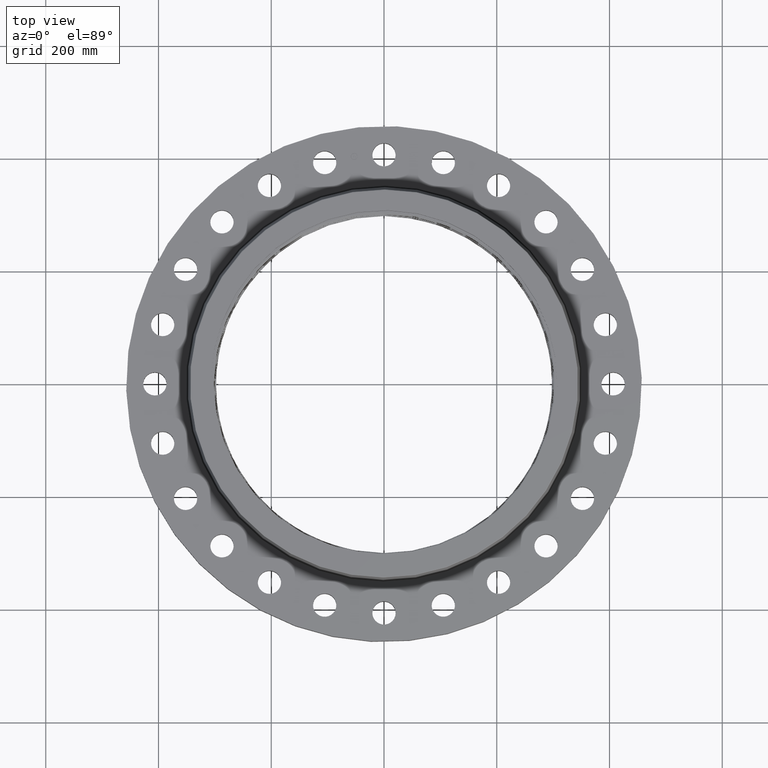
[diagram: clean part render]
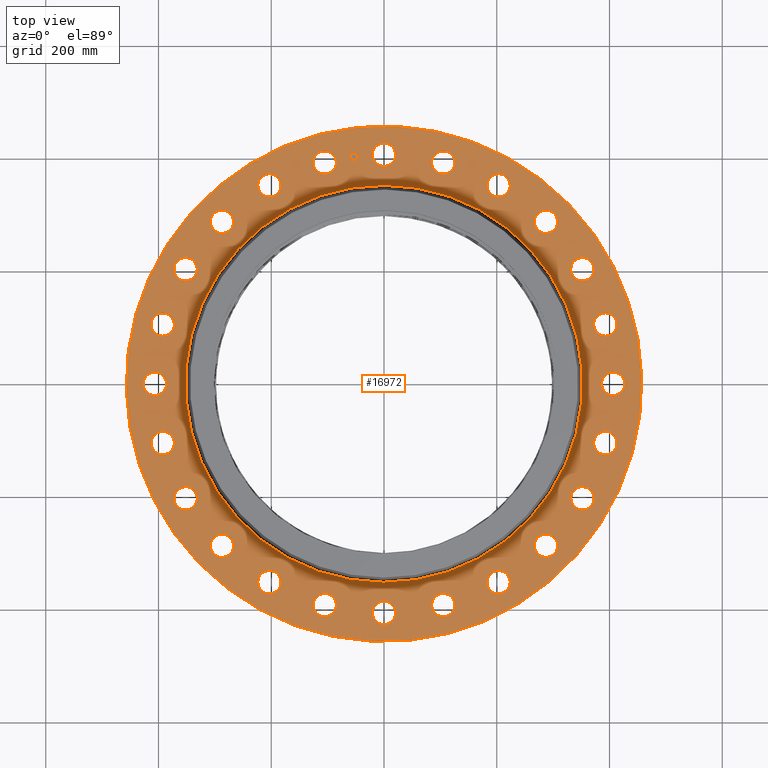
[diagram: same view with one face highlighted and labeled with its STEP entity id]
A machine part, top view. The second image highlights one B-rep face of the part: STEP entity #16972.
In plain terms, the highlighted planar face has unit normal (0, 0, -1).
Its self-contained STEP definition (entity closure, byte-faithful):
#462=AXIS2_PLACEMENT_3D('Circle Axis2P3D',#460,#461,$) ;
#479=AXIS2_PLACEMENT_3D('Circle Axis2P3D',#477,#478,$) ;
#519=AXIS2_PLACEMENT_3D('Circle Axis2P3D',#517,#518,$) ;
#536=AXIS2_PLACEMENT_3D('Circle Axis2P3D',#534,#535,$) ;
#576=AXIS2_PLACEMENT_3D('Circle Axis2P3D',#574,#575,$) ;
#593=AXIS2_PLACEMENT_3D('Circle Axis2P3D',#591,#592,$) ;
#633=AXIS2_PLACEMENT_3D('Circle Axis2P3D',#631,#632,$) ;
#650=AXIS2_PLACEMENT_3D('Circle Axis2P3D',#648,#649,$) ;
#690=AXIS2_PLACEMENT_3D('Circle Axis2P3D',#688,#689,$) ;
#707=AXIS2_PLACEMENT_3D('Circle Axis2P3D',#705,#706,$) ;
#747=AXIS2_PLACEMENT_3D('Circle Axis2P3D',#745,#746,$) ;
#764=AXIS2_PLACEMENT_3D('Circle Axis2P3D',#762,#763,$) ;
#804=AXIS2_PLACEMENT_3D('Circle Axis2P3D',#802,#803,$) ;
#821=AXIS2_PLACEMENT_3D('Circle Axis2P3D',#819,#820,$) ;
#861=AXIS2_PLACEMENT_3D('Circle Axis2P3D',#859,#860,$) ;
#878=AXIS2_PLACEMENT_3D('Circle Axis2P3D',#876,#877,$) ;
#918=AXIS2_PLACEMENT_3D('Circle Axis2P3D',#916,#917,$) ;
#935=AXIS2_PLACEMENT_3D('Circle Axis2P3D',#933,#934,$) ;
#975=AXIS2_PLACEMENT_3D('Circle Axis2P3D',#973,#974,$) ;
#992=AXIS2_PLACEMENT_3D('Circle Axis2P3D',#990,#991,$) ;
#1032=AXIS2_PLACEMENT_3D('Circle Axis2P3D',#1030,#1031,$) ;
#1049=AXIS2_PLACEMENT_3D('Circle Axis2P3D',#1047,#1048,$) ;
#1089=AXIS2_PLACEMENT_3D('Circle Axis2P3D',#1087,#1088,$) ;
#1106=AXIS2_PLACEMENT_3D('Circle Axis2P3D',#1104,#1105,$) ;
#1146=AXIS2_PLACEMENT_3D('Circle Axis2P3D',#1144,#1145,$) ;
#1163=AXIS2_PLACEMENT_3D('Circle Axis2P3D',#1161,#1162,$) ;
#1203=AXIS2_PLACEMENT_3D('Circle Axis2P3D',#1201,#1202,$) ;
#1220=AXIS2_PLACEMENT_3D('Circle Axis2P3D',#1218,#1219,$) ;
#1260=AXIS2_PLACEMENT_3D('Circle Axis2P3D',#1258,#1259,$) ;
#1277=AXIS2_PLACEMENT_3D('Circle Axis2P3D',#1275,#1276,$) ;
#1317=AXIS2_PLACEMENT_3D('Circle Axis2P3D',#1315,#1316,$) ;
#1334=AXIS2_PLACEMENT_3D('Circle Axis2P3D',#1332,#1333,$) ;
#1374=AXIS2_PLACEMENT_3D('Circle Axis2P3D',#1372,#1373,$) ;
#1391=AXIS2_PLACEMENT_3D('Circle Axis2P3D',#1389,#1390,$) ;
#1431=AXIS2_PLACEMENT_3D('Circle Axis2P3D',#1429,#1430,$) ;
#1448=AXIS2_PLACEMENT_3D('Circle Axis2P3D',#1446,#1447,$) ;
#1488=AXIS2_PLACEMENT_3D('Circle Axis2P3D',#1486,#1487,$) ;
#1505=AXIS2_PLACEMENT_3D('Circle Axis2P3D',#1503,#1504,$) ;
#1545=AXIS2_PLACEMENT_3D('Circle Axis2P3D',#1543,#1544,$) ;
#1562=AXIS2_PLACEMENT_3D('Circle Axis2P3D',#1560,#1561,$) ;
#1602=AXIS2_PLACEMENT_3D('Circle Axis2P3D',#1600,#1601,$) ;
#1619=AXIS2_PLACEMENT_3D('Circle Axis2P3D',#1617,#1618,$) ;
#1659=AXIS2_PLACEMENT_3D('Circle Axis2P3D',#1657,#1658,$) ;
#1676=AXIS2_PLACEMENT_3D('Circle Axis2P3D',#1674,#1675,$) ;
#1716=AXIS2_PLACEMENT_3D('Circle Axis2P3D',#1714,#1715,$) ;
#1733=AXIS2_PLACEMENT_3D('Circle Axis2P3D',#1731,#1732,$) ;
#2031=AXIS2_PLACEMENT_3D('Circle Axis2P3D',#2029,#2030,$) ;
#2057=AXIS2_PLACEMENT_3D('Circle Axis2P3D',#2055,#2056,$) ;
#2081=AXIS2_PLACEMENT_3D('Circle Axis2P3D',#2079,#2080,$) ;
#2100=AXIS2_PLACEMENT_3D('Circle Axis2P3D',#2098,#2099,$) ;
#2131=AXIS2_PLACEMENT_3D('Circle Axis2P3D',#2129,#2130,$) ;
#2143=AXIS2_PLACEMENT_3D('Circle Axis2P3D',#2141,#2142,$) ;
#16848=AXIS2_PLACEMENT_3D('Plane Axis2P3D',#16845,#16846,#16847) ;
#16956=AXIS2_PLACEMENT_3D('Circle Axis2P3D',#16954,#16955,$) ;
#16965=AXIS2_PLACEMENT_3D('Circle Axis2P3D',#16963,#16964,$) ;
#443=CARTESIAN_POINT('Vertex',(4.73083481058,14.8922801797,2.69000000001)) ;
#457=CARTESIAN_POINT('Vertex',(3.55137463273,16.0173462617,2.69000000001)) ;
#460=CARTESIAN_POINT('Axis2P3D Location',(4.14110472166,15.4548132207,2.69000000001)) ;
#477=CARTESIAN_POINT('Axis2P3D Location',(4.14110472166,15.4548132207,2.69000000001)) ;
#500=CARTESIAN_POINT('Vertex',(-0.715229787944,-15.6092681861,2.69000000001)) ;
#514=CARTESIAN_POINT('Vertex',(0.715229787944,-16.390731814,2.69000000001)) ;
#517=CARTESIAN_POINT('Axis2P3D Location',(1.95943487864E-015,-16.0000000001,2.69000000001)) ;
#534=CARTESIAN_POINT('Axis2P3D Location',(1.95943487864E-015,-16.0000000001,2.69000000001)) ;
#557=CARTESIAN_POINT('Vertex',(-3.34911696277,15.2625103612,2.69000000001)) ;
#571=CARTESIAN_POINT('Vertex',(-4.93309248054,15.6471160802,2.69000000001)) ;
#574=CARTESIAN_POINT('Axis2P3D Location',(-4.14110472166,15.4548132207,2.69000000001)) ;
#591=CARTESIAN_POINT('Axis2P3D Location',(-4.14110472166,15.4548132207,2.69000000001)) ;
#614=CARTESIAN_POINT('Vertex',(3.34911696277,-15.2625103612,2.69000000001)) ;
#628=CARTESIAN_POINT('Vertex',(4.93309248054,-15.6471160802,2.69000000001)) ;
#631=CARTESIAN_POINT('Axis2P3D Location',(4.14110472166,-15.4548132207,2.69000000001)) ;
#648=CARTESIAN_POINT('Axis2P3D Location',(4.14110472166,-15.4548132207,2.69000000001)) ;
#671=CARTESIAN_POINT('Vertex',(-7.18522692715,13.8756376776,2.69000000001)) ;
#685=CARTESIAN_POINT('Vertex',(-8.81477307292,13.8371752436,2.69000000001)) ;
#688=CARTESIAN_POINT('Axis2P3D Location',(-8.00000000003,13.8564064606,2.69000000001)) ;
#705=CARTESIAN_POINT('Axis2P3D Location',(-8.00000000003,13.8564064606,2.69000000001)) ;
#728=CARTESIAN_POINT('Vertex',(7.18522692715,-13.8756376776,2.69000000001)) ;
#742=CARTESIAN_POINT('Vertex',(8.81477307292,-13.8371752436,2.69000000001)) ;
#745=CARTESIAN_POINT('Axis2P3D Location',(8.00000000003,-13.8564064606,2.69000000001)) ;
#762=CARTESIAN_POINT('Axis2P3D Location',(8.00000000003,-13.8564064606,2.69000000001)) ;
#785=CARTESIAN_POINT('Vertex',(-10.5316755506,11.5431632169,2.69000000001)) ;
#799=CARTESIAN_POINT('Vertex',(-12.0957414475,11.0842537811,2.69000000001)) ;
#802=CARTESIAN_POINT('Axis2P3D Location',(-11.313708499,11.313708499,2.69000000001)) ;
#819=CARTESIAN_POINT('Axis2P3D Location',(-11.313708499,11.313708499,2.69000000001)) ;
#842=CARTESIAN_POINT('Vertex',(10.5316755506,-11.5431632169,2.69000000001)) ;
#856=CARTESIAN_POINT('Vertex',(12.0957414475,-11.0842537811,2.69000000001)) ;
#859=CARTESIAN_POINT('Axis2P3D Location',(11.313708499,-11.313708499,2.69000000001)) ;
#876=CARTESIAN_POINT('Axis2P3D Location',(11.313708499,-11.313708499,2.69000000001)) ;
#899=CARTESIAN_POINT('Vertex',(-13.1604078897,8.42404125895,2.69000000001)) ;
#913=CARTESIAN_POINT('Vertex',(-14.5524050315,7.57595874111,2.69000000001)) ;
#916=CARTESIAN_POINT('Axis2P3D Location',(-13.8564064606,8.00000000003,2.69000000001)) ;
#933=CARTESIAN_POINT('Axis2P3D Location',(-13.8564064606,8.00000000003,2.69000000001)) ;
#956=CARTESIAN_POINT('Vertex',(13.1604078897,-8.42404125895,2.69000000001)) ;
#970=CARTESIAN_POINT('Vertex',(14.5524050315,-7.57595874111,2.69000000001)) ;
#973=CARTESIAN_POINT('Axis2P3D Location',(13.8564064606,-8.00000000003,2.69000000001)) ;
#990=CARTESIAN_POINT('Axis2P3D Location',(13.8564064606,-8.00000000003,2.69000000001)) ;
#1013=CARTESIAN_POINT('Vertex',(-14.8922801797,4.73083481058,2.69000000001)) ;
#1027=CARTESIAN_POINT('Vertex',(-16.0173462617,3.55137463273,2.69000000001)) ;
#1030=CARTESIAN_POINT('Axis2P3D Location',(-15.4548132207,4.14110472166,2.69000000001)) ;
#1047=CARTESIAN_POINT('Axis2P3D Location',(-15.4548132207,4.14110472166,2.69000000001)) ;
#1070=CARTESIAN_POINT('Vertex',(14.8922801797,-4.73083481058,2.69000000001)) ;
#1084=CARTESIAN_POINT('Vertex',(16.0173462617,-3.55137463273,2.69000000001)) ;
#1087=CARTESIAN_POINT('Axis2P3D Location',(15.4548132207,-4.14110472166,2.69000000001)) ;
#1104=CARTESIAN_POINT('Axis2P3D Location',(15.4548132207,-4.14110472166,2.69000000001)) ;
#1127=CARTESIAN_POINT('Vertex',(-15.6092681861,0.715229787944,2.69000000001)) ;
#1141=CARTESIAN_POINT('Vertex',(-16.390731814,-0.715229787944,2.69000000001)) ;
#1144=CARTESIAN_POINT('Axis2P3D Location',(-16.0000000001,-7.01222441556E-016,2.69000000001)) ;
#1161=CARTESIAN_POINT('Axis2P3D Location',(-16.0000000001,-7.01222441556E-016,2.69000000001)) ;
#1184=CARTESIAN_POINT('Vertex',(15.6092681861,-0.715229787944,2.69000000001)) ;
#1198=CARTESIAN_POINT('Vertex',(16.390731814,0.715229787944,2.69000000001)) ;
#1201=CARTESIAN_POINT('Axis2P3D Location',(16.0000000001,9.79717439322E-016,2.69000000001)) ;
#1218=CARTESIAN_POINT('Axis2P3D Location',(16.0000000001,9.79717439322E-016,2.69000000001)) ;
#1241=CARTESIAN_POINT('Vertex',(-15.2625103612,-3.34911696277,2.69000000001)) ;
#1255=CARTESIAN_POINT('Vertex',(-15.6471160802,-4.93309248054,2.69000000001)) ;
#1258=CARTESIAN_POINT('Axis2P3D Location',(-15.4548132207,-4.14110472166,2.69000000001)) ;
#1275=CARTESIAN_POINT('Axis2P3D Location',(-15.4548132207,-4.14110472166,2.69000000001)) ;
#1298=CARTESIAN_POINT('Vertex',(15.2625103612,3.34911696277,2.69000000001)) ;
#1312=CARTESIAN_POINT('Vertex',(15.6471160802,4.93309248054,2.69000000001)) ;
#1315=CARTESIAN_POINT('Axis2P3D Location',(15.4548132207,4.14110472166,2.69000000001)) ;
#1332=CARTESIAN_POINT('Axis2P3D Location',(15.4548132207,4.14110472166,2.69000000001)) ;
#1355=CARTESIAN_POINT('Vertex',(-13.8756376776,-7.18522692715,2.69000000001)) ;
#1369=CARTESIAN_POINT('Vertex',(-13.8371752436,-8.81477307292,2.69000000001)) ;
#1372=CARTESIAN_POINT('Axis2P3D Location',(-13.8564064606,-8.00000000003,2.69000000001)) ;
#1389=CARTESIAN_POINT('Axis2P3D Location',(-13.8564064606,-8.00000000003,2.69000000001)) ;
#1412=CARTESIAN_POINT('Vertex',(13.8756376776,7.18522692715,2.69000000001)) ;
#1426=CARTESIAN_POINT('Vertex',(13.8371752436,8.81477307292,2.69000000001)) ;
#1429=CARTESIAN_POINT('Axis2P3D Location',(13.8564064606,8.00000000003,2.69000000001)) ;
#1446=CARTESIAN_POINT('Axis2P3D Location',(13.8564064606,8.00000000003,2.69000000001)) ;
#1469=CARTESIAN_POINT('Vertex',(-11.5431632169,-10.5316755506,2.69000000001)) ;
#1483=CARTESIAN_POINT('Vertex',(-11.0842537811,-12.0957414475,2.69000000001)) ;
#1486=CARTESIAN_POINT('Axis2P3D Location',(-11.313708499,-11.313708499,2.69000000001)) ;
#1503=CARTESIAN_POINT('Axis2P3D Location',(-11.313708499,-11.313708499,2.69000000001)) ;
#1526=CARTESIAN_POINT('Vertex',(11.5431632169,10.5316755506,2.69000000001)) ;
#1540=CARTESIAN_POINT('Vertex',(11.0842537811,12.0957414475,2.69000000001)) ;
#1543=CARTESIAN_POINT('Axis2P3D Location',(11.313708499,11.313708499,2.69000000001)) ;
#1560=CARTESIAN_POINT('Axis2P3D Location',(11.313708499,11.313708499,2.69000000001)) ;
#1583=CARTESIAN_POINT('Vertex',(-8.42404125895,-13.1604078897,2.69000000001)) ;
#1597=CARTESIAN_POINT('Vertex',(-7.57595874111,-14.5524050315,2.69000000001)) ;
#1600=CARTESIAN_POINT('Axis2P3D Location',(-8.00000000003,-13.8564064606,2.69000000001)) ;
#1617=CARTESIAN_POINT('Axis2P3D Location',(-8.00000000003,-13.8564064606,2.69000000001)) ;
#1640=CARTESIAN_POINT('Vertex',(8.42404125895,13.1604078897,2.69000000001)) ;
#1654=CARTESIAN_POINT('Vertex',(7.57595874111,14.5524050315,2.69000000001)) ;
#1657=CARTESIAN_POINT('Axis2P3D Location',(8.00000000003,13.8564064606,2.69000000001)) ;
#1674=CARTESIAN_POINT('Axis2P3D Location',(8.00000000003,13.8564064606,2.69000000001)) ;
#1697=CARTESIAN_POINT('Vertex',(-4.73083481058,-14.8922801797,2.69000000001)) ;
#1711=CARTESIAN_POINT('Vertex',(-3.55137463273,-16.0173462617,2.69000000001)) ;
#1714=CARTESIAN_POINT('Axis2P3D Location',(-4.14110472166,-15.4548132207,2.69000000001)) ;
#1731=CARTESIAN_POINT('Axis2P3D Location',(-4.14110472166,-15.4548132207,2.69000000001)) ;
#2029=CARTESIAN_POINT('Axis2P3D Location',(0.,0.,2.69000000001)) ;
#2033=CARTESIAN_POINT('Vertex',(-6.64500383571,-12.163597932,2.69000000001)) ;
#2035=CARTESIAN_POINT('Vertex',(6.64500383571,12.163597932,2.69000000001)) ;
#2055=CARTESIAN_POINT('Axis2P3D Location',(0.,0.,2.69000000001)) ;
#2076=CARTESIAN_POINT('Vertex',(8.62965969491,15.7964861141,2.69000000001)) ;
#2079=CARTESIAN_POINT('Axis2P3D Location',(0.,0.,2.69000000001)) ;
#2083=CARTESIAN_POINT('Vertex',(-8.62965969491,-15.7964861141,2.69000000001)) ;
#2098=CARTESIAN_POINT('Axis2P3D Location',(0.,0.,2.69000000001)) ;
#2119=CARTESIAN_POINT('Vertex',(0.715229787944,15.6092681861,2.69000000001)) ;
#2126=CARTESIAN_POINT('Vertex',(-0.715229787944,16.390731814,2.69000000001)) ;
#2129=CARTESIAN_POINT('Axis2P3D Location',(0.,16.0000000001,2.69000000001)) ;
#2141=CARTESIAN_POINT('Axis2P3D Location',(0.,16.0000000001,2.69000000001)) ;
#16845=CARTESIAN_POINT('Axis2P3D Location',(0.,18.0000000001,2.69000000001)) ;
#16954=CARTESIAN_POINT('Axis2P3D Location',(-2.08841907553,15.863117782,2.69000000001)) ;
#16958=CARTESIAN_POINT('Vertex',(-2.33380167872,15.8308125495,2.69000000001)) ;
#16960=CARTESIAN_POINT('Vertex',(-1.84303647234,15.8954230146,2.69000000001)) ;
#16963=CARTESIAN_POINT('Axis2P3D Location',(-2.08841907553,15.863117782,2.69000000001)) ;
#461=DIRECTION('Axis2P3D Direction',(0.,-0.,-0.0393700787402)) ;
#478=DIRECTION('Axis2P3D Direction',(0.,-0.,-0.0393700787402)) ;
#518=DIRECTION('Axis2P3D Direction',(-0.,0.,-0.0393700787402)) ;
#535=DIRECTION('Axis2P3D Direction',(-0.,0.,-0.0393700787402)) ;
#575=DIRECTION('Axis2P3D Direction',(0.,0.,-0.0393700787402)) ;
#592=DIRECTION('Axis2P3D Direction',(0.,0.,-0.0393700787402)) ;
#632=DIRECTION('Axis2P3D Direction',(-0.,0.,-0.0393700787402)) ;
#649=DIRECTION('Axis2P3D Direction',(-0.,0.,-0.0393700787402)) ;
#689=DIRECTION('Axis2P3D Direction',(0.,0.,-0.0393700787402)) ;
#706=DIRECTION('Axis2P3D Direction',(0.,0.,-0.0393700787402)) ;
#746=DIRECTION('Axis2P3D Direction',(-0.,0.,-0.0393700787402)) ;
#763=DIRECTION('Axis2P3D Direction',(-0.,0.,-0.0393700787402)) ;
#803=DIRECTION('Axis2P3D Direction',(0.,0.,-0.0393700787402)) ;
#820=DIRECTION('Axis2P3D Direction',(0.,0.,-0.0393700787402)) ;
#860=DIRECTION('Axis2P3D Direction',(-0.,0.,-0.0393700787402)) ;
#877=DIRECTION('Axis2P3D Direction',(-0.,0.,-0.0393700787402)) ;
#917=DIRECTION('Axis2P3D Direction',(0.,0.,-0.0393700787402)) ;
#934=DIRECTION('Axis2P3D Direction',(0.,0.,-0.0393700787402)) ;
#974=DIRECTION('Axis2P3D Direction',(-0.,0.,-0.0393700787402)) ;
#991=DIRECTION('Axis2P3D Direction',(-0.,0.,-0.0393700787402)) ;
#1031=DIRECTION('Axis2P3D Direction',(0.,0.,-0.0393700787402)) ;
#1048=DIRECTION('Axis2P3D Direction',(0.,0.,-0.0393700787402)) ;
#1088=DIRECTION('Axis2P3D Direction',(-0.,0.,-0.0393700787402)) ;
#1105=DIRECTION('Axis2P3D Direction',(-0.,0.,-0.0393700787402)) ;
#1145=DIRECTION('Axis2P3D Direction',(0.,0.,-0.0393700787402)) ;
#1162=DIRECTION('Axis2P3D Direction',(0.,0.,-0.0393700787402)) ;
#1202=DIRECTION('Axis2P3D Direction',(0.,-0.,-0.0393700787402)) ;
#1219=DIRECTION('Axis2P3D Direction',(0.,-0.,-0.0393700787402)) ;
#1259=DIRECTION('Axis2P3D Direction',(0.,0.,-0.0393700787402)) ;
#1276=DIRECTION('Axis2P3D Direction',(0.,0.,-0.0393700787402)) ;
#1316=DIRECTION('Axis2P3D Direction',(0.,-0.,-0.0393700787402)) ;
#1333=DIRECTION('Axis2P3D Direction',(0.,-0.,-0.0393700787402)) ;
#1373=DIRECTION('Axis2P3D Direction',(0.,0.,-0.0393700787402)) ;
#1390=DIRECTION('Axis2P3D Direction',(0.,0.,-0.0393700787402)) ;
#1430=DIRECTION('Axis2P3D Direction',(0.,-0.,-0.0393700787402)) ;
#1447=DIRECTION('Axis2P3D Direction',(0.,-0.,-0.0393700787402)) ;
#1487=DIRECTION('Axis2P3D Direction',(0.,0.,-0.0393700787402)) ;
#1504=DIRECTION('Axis2P3D Direction',(0.,0.,-0.0393700787402)) ;
#1544=DIRECTION('Axis2P3D Direction',(0.,-0.,-0.0393700787402)) ;
#1561=DIRECTION('Axis2P3D Direction',(0.,-0.,-0.0393700787402)) ;
#1601=DIRECTION('Axis2P3D Direction',(0.,0.,-0.0393700787402)) ;
#1618=DIRECTION('Axis2P3D Direction',(0.,0.,-0.0393700787402)) ;
#1658=DIRECTION('Axis2P3D Direction',(0.,-0.,-0.0393700787402)) ;
#1675=DIRECTION('Axis2P3D Direction',(0.,-0.,-0.0393700787402)) ;
#1715=DIRECTION('Axis2P3D Direction',(0.,0.,-0.0393700787402)) ;
#1732=DIRECTION('Axis2P3D Direction',(0.,0.,-0.0393700787402)) ;
#2030=DIRECTION('Axis2P3D Direction',(0.,0.,-0.0393700787402)) ;
#2056=DIRECTION('Axis2P3D Direction',(0.,0.,-0.0393700787402)) ;
#2080=DIRECTION('Axis2P3D Direction',(0.,0.,-0.0393700787402)) ;
#2099=DIRECTION('Axis2P3D Direction',(0.,0.,-0.0393700787402)) ;
#2130=DIRECTION('Axis2P3D Direction',(0.,-0.,-0.0393700787402)) ;
#2142=DIRECTION('Axis2P3D Direction',(0.,-0.,-0.0393700787402)) ;
#16846=DIRECTION('Axis2P3D Direction',(0.,0.,-0.0393700787402)) ;
#16847=DIRECTION('Axis2P3D XDirection',(0.0393700787402,0.,0.)) ;
#16955=DIRECTION('Axis2P3D Direction',(0.,0.,-0.0393700787402)) ;
#16964=DIRECTION('Axis2P3D Direction',(0.,0.,-0.0393700787402)) ;
#16851=ORIENTED_EDGE('',*,*,#2085,.F.) ;
#16852=ORIENTED_EDGE('',*,*,#2102,.F.) ;
#16855=ORIENTED_EDGE('',*,*,#2145,.T.) ;
#16856=ORIENTED_EDGE('',*,*,#2133,.T.) ;
#16859=ORIENTED_EDGE('',*,*,#2037,.T.) ;
#16860=ORIENTED_EDGE('',*,*,#2059,.T.) ;
#16863=ORIENTED_EDGE('',*,*,#464,.T.) ;
#16864=ORIENTED_EDGE('',*,*,#481,.T.) ;
#16867=ORIENTED_EDGE('',*,*,#1661,.T.) ;
#16868=ORIENTED_EDGE('',*,*,#1678,.T.) ;
#16871=ORIENTED_EDGE('',*,*,#1547,.T.) ;
#16872=ORIENTED_EDGE('',*,*,#1564,.T.) ;
#16875=ORIENTED_EDGE('',*,*,#1433,.T.) ;
#16876=ORIENTED_EDGE('',*,*,#1450,.T.) ;
#16879=ORIENTED_EDGE('',*,*,#1319,.T.) ;
#16880=ORIENTED_EDGE('',*,*,#1336,.T.) ;
#16883=ORIENTED_EDGE('',*,*,#1205,.T.) ;
#16884=ORIENTED_EDGE('',*,*,#1222,.T.) ;
#16887=ORIENTED_EDGE('',*,*,#1091,.T.) ;
#16888=ORIENTED_EDGE('',*,*,#1108,.T.) ;
#16891=ORIENTED_EDGE('',*,*,#977,.T.) ;
#16892=ORIENTED_EDGE('',*,*,#994,.T.) ;
#16895=ORIENTED_EDGE('',*,*,#863,.T.) ;
#16896=ORIENTED_EDGE('',*,*,#880,.T.) ;
#16899=ORIENTED_EDGE('',*,*,#749,.T.) ;
#16900=ORIENTED_EDGE('',*,*,#766,.T.) ;
#16903=ORIENTED_EDGE('',*,*,#635,.T.) ;
#16904=ORIENTED_EDGE('',*,*,#652,.T.) ;
#16907=ORIENTED_EDGE('',*,*,#521,.T.) ;
#16908=ORIENTED_EDGE('',*,*,#538,.T.) ;
#16911=ORIENTED_EDGE('',*,*,#1718,.T.) ;
#16912=ORIENTED_EDGE('',*,*,#1735,.T.) ;
#16915=ORIENTED_EDGE('',*,*,#1604,.T.) ;
#16916=ORIENTED_EDGE('',*,*,#1621,.T.) ;
#16919=ORIENTED_EDGE('',*,*,#1490,.T.) ;
#16920=ORIENTED_EDGE('',*,*,#1507,.T.) ;
#16923=ORIENTED_EDGE('',*,*,#1376,.T.) ;
#16924=ORIENTED_EDGE('',*,*,#1393,.T.) ;
#16927=ORIENTED_EDGE('',*,*,#1262,.T.) ;
#16928=ORIENTED_EDGE('',*,*,#1279,.T.) ;
#16931=ORIENTED_EDGE('',*,*,#1148,.T.) ;
#16932=ORIENTED_EDGE('',*,*,#1165,.T.) ;
#16935=ORIENTED_EDGE('',*,*,#1034,.T.) ;
#16936=ORIENTED_EDGE('',*,*,#1051,.T.) ;
#16939=ORIENTED_EDGE('',*,*,#920,.T.) ;
#16940=ORIENTED_EDGE('',*,*,#937,.T.) ;
#16943=ORIENTED_EDGE('',*,*,#806,.T.) ;
#16944=ORIENTED_EDGE('',*,*,#823,.T.) ;
#16947=ORIENTED_EDGE('',*,*,#692,.T.) ;
#16948=ORIENTED_EDGE('',*,*,#709,.T.) ;
#16951=ORIENTED_EDGE('',*,*,#578,.T.) ;
#16952=ORIENTED_EDGE('',*,*,#595,.T.) ;
#16969=ORIENTED_EDGE('',*,*,#16962,.T.) ;
#16970=ORIENTED_EDGE('',*,*,#16967,.T.) ;
#16857=FACE_BOUND('',#16854,.T.) ;
#16861=FACE_BOUND('',#16858,.T.) ;
#16865=FACE_BOUND('',#16862,.T.) ;
#16869=FACE_BOUND('',#16866,.T.) ;
#16873=FACE_BOUND('',#16870,.T.) ;
#16877=FACE_BOUND('',#16874,.T.) ;
#16881=FACE_BOUND('',#16878,.T.) ;
#16885=FACE_BOUND('',#16882,.T.) ;
#16889=FACE_BOUND('',#16886,.T.) ;
#16893=FACE_BOUND('',#16890,.T.) ;
#16897=FACE_BOUND('',#16894,.T.) ;
#16901=FACE_BOUND('',#16898,.T.) ;
#16905=FACE_BOUND('',#16902,.T.) ;
#16909=FACE_BOUND('',#16906,.T.) ;
#16913=FACE_BOUND('',#16910,.T.) ;
#16917=FACE_BOUND('',#16914,.T.) ;
#16921=FACE_BOUND('',#16918,.T.) ;
#16925=FACE_BOUND('',#16922,.T.) ;
#16929=FACE_BOUND('',#16926,.T.) ;
#16933=FACE_BOUND('',#16930,.T.) ;
#16937=FACE_BOUND('',#16934,.T.) ;
#16941=FACE_BOUND('',#16938,.T.) ;
#16945=FACE_BOUND('',#16942,.T.) ;
#16949=FACE_BOUND('',#16946,.T.) ;
#16953=FACE_BOUND('',#16950,.T.) ;
#16971=FACE_BOUND('',#16968,.T.) ;
#16972=ADVANCED_FACE('PartBody',(#16853,#16857,#16861,#16865,#16869,#16873,#16877,#16881,#16885,#16889,#16893,#16897,#16901,#16905,#16909,#16913,#16917,#16921,#16925,#16929,#16933,#16937,#16941,#16945,#16949,#16953,#16971),#16849,.F.) ;
#463=CIRCLE('generated circle',#462,0.815000000003) ;
#480=CIRCLE('generated circle',#479,0.815000000003) ;
#520=CIRCLE('generated circle',#519,0.815000000003) ;
#537=CIRCLE('generated circle',#536,0.815000000003) ;
#577=CIRCLE('generated circle',#576,0.815000000003) ;
#594=CIRCLE('generated circle',#593,0.815000000003) ;
#634=CIRCLE('generated circle',#633,0.815000000003) ;
#651=CIRCLE('generated circle',#650,0.815000000003) ;
#691=CIRCLE('generated circle',#690,0.815000000003) ;
#708=CIRCLE('generated circle',#707,0.815000000003) ;
#748=CIRCLE('generated circle',#747,0.815000000003) ;
#765=CIRCLE('generated circle',#764,0.815000000003) ;
#805=CIRCLE('generated circle',#804,0.815000000003) ;
#822=CIRCLE('generated circle',#821,0.815000000003) ;
#862=CIRCLE('generated circle',#861,0.815000000003) ;
#879=CIRCLE('generated circle',#878,0.815000000003) ;
#919=CIRCLE('generated circle',#918,0.815000000003) ;
#936=CIRCLE('generated circle',#935,0.815000000003) ;
#976=CIRCLE('generated circle',#975,0.815000000003) ;
#993=CIRCLE('generated circle',#992,0.815000000003) ;
#1033=CIRCLE('generated circle',#1032,0.815000000003) ;
#1050=CIRCLE('generated circle',#1049,0.815000000003) ;
#1090=CIRCLE('generated circle',#1089,0.815000000003) ;
#1107=CIRCLE('generated circle',#1106,0.815000000003) ;
#1147=CIRCLE('generated circle',#1146,0.815000000003) ;
#1164=CIRCLE('generated circle',#1163,0.815000000003) ;
#1204=CIRCLE('generated circle',#1203,0.815000000003) ;
#1221=CIRCLE('generated circle',#1220,0.815000000003) ;
#1261=CIRCLE('generated circle',#1260,0.815000000003) ;
#1278=CIRCLE('generated circle',#1277,0.815000000003) ;
#1318=CIRCLE('generated circle',#1317,0.815000000003) ;
#1335=CIRCLE('generated circle',#1334,0.815000000003) ;
#1375=CIRCLE('generated circle',#1374,0.815000000003) ;
#1392=CIRCLE('generated circle',#1391,0.815000000003) ;
#1432=CIRCLE('generated circle',#1431,0.815000000003) ;
#1449=CIRCLE('generated circle',#1448,0.815000000003) ;
#1489=CIRCLE('generated circle',#1488,0.815000000003) ;
#1506=CIRCLE('generated circle',#1505,0.815000000003) ;
#1546=CIRCLE('generated circle',#1545,0.815000000003) ;
#1563=CIRCLE('generated circle',#1562,0.815000000003) ;
#1603=CIRCLE('generated circle',#1602,0.815000000003) ;
#1620=CIRCLE('generated circle',#1619,0.815000000003) ;
#1660=CIRCLE('generated circle',#1659,0.815000000003) ;
#1677=CIRCLE('generated circle',#1676,0.815000000003) ;
#1717=CIRCLE('generated circle',#1716,0.815000000003) ;
#1734=CIRCLE('generated circle',#1733,0.815000000003) ;
#2032=CIRCLE('generated circle',#2031,13.8603459779) ;
#2058=CIRCLE('generated circle',#2057,13.8603459779) ;
#2082=CIRCLE('generated circle',#2081,18.0000000001) ;
#2101=CIRCLE('generated circle',#2100,18.0000000001) ;
#2132=CIRCLE('generated circle',#2131,0.815000000003) ;
#2144=CIRCLE('generated circle',#2143,0.815000000003) ;
#16957=CIRCLE('generated circle',#16956,0.247500000001) ;
#16966=CIRCLE('generated circle',#16965,0.247500000001) ;
#464=EDGE_CURVE('',#444,#458,#463,.T.) ;
#481=EDGE_CURVE('',#458,#444,#480,.T.) ;
#521=EDGE_CURVE('',#501,#515,#520,.T.) ;
#538=EDGE_CURVE('',#515,#501,#537,.T.) ;
#578=EDGE_CURVE('',#558,#572,#577,.T.) ;
#595=EDGE_CURVE('',#572,#558,#594,.T.) ;
#635=EDGE_CURVE('',#615,#629,#634,.T.) ;
#652=EDGE_CURVE('',#629,#615,#651,.T.) ;
#692=EDGE_CURVE('',#672,#686,#691,.T.) ;
#709=EDGE_CURVE('',#686,#672,#708,.T.) ;
#749=EDGE_CURVE('',#729,#743,#748,.T.) ;
#766=EDGE_CURVE('',#743,#729,#765,.T.) ;
#806=EDGE_CURVE('',#786,#800,#805,.T.) ;
#823=EDGE_CURVE('',#800,#786,#822,.T.) ;
#863=EDGE_CURVE('',#843,#857,#862,.T.) ;
#880=EDGE_CURVE('',#857,#843,#879,.T.) ;
#920=EDGE_CURVE('',#900,#914,#919,.T.) ;
#937=EDGE_CURVE('',#914,#900,#936,.T.) ;
#977=EDGE_CURVE('',#957,#971,#976,.T.) ;
#994=EDGE_CURVE('',#971,#957,#993,.T.) ;
#1034=EDGE_CURVE('',#1014,#1028,#1033,.T.) ;
#1051=EDGE_CURVE('',#1028,#1014,#1050,.T.) ;
#1091=EDGE_CURVE('',#1071,#1085,#1090,.T.) ;
#1108=EDGE_CURVE('',#1085,#1071,#1107,.T.) ;
#1148=EDGE_CURVE('',#1128,#1142,#1147,.T.) ;
#1165=EDGE_CURVE('',#1142,#1128,#1164,.T.) ;
#1205=EDGE_CURVE('',#1185,#1199,#1204,.T.) ;
#1222=EDGE_CURVE('',#1199,#1185,#1221,.T.) ;
#1262=EDGE_CURVE('',#1242,#1256,#1261,.T.) ;
#1279=EDGE_CURVE('',#1256,#1242,#1278,.T.) ;
#1319=EDGE_CURVE('',#1299,#1313,#1318,.T.) ;
#1336=EDGE_CURVE('',#1313,#1299,#1335,.T.) ;
#1376=EDGE_CURVE('',#1356,#1370,#1375,.T.) ;
#1393=EDGE_CURVE('',#1370,#1356,#1392,.T.) ;
#1433=EDGE_CURVE('',#1413,#1427,#1432,.T.) ;
#1450=EDGE_CURVE('',#1427,#1413,#1449,.T.) ;
#1490=EDGE_CURVE('',#1470,#1484,#1489,.T.) ;
#1507=EDGE_CURVE('',#1484,#1470,#1506,.T.) ;
#1547=EDGE_CURVE('',#1527,#1541,#1546,.T.) ;
#1564=EDGE_CURVE('',#1541,#1527,#1563,.T.) ;
#1604=EDGE_CURVE('',#1584,#1598,#1603,.T.) ;
#1621=EDGE_CURVE('',#1598,#1584,#1620,.T.) ;
#1661=EDGE_CURVE('',#1641,#1655,#1660,.T.) ;
#1678=EDGE_CURVE('',#1655,#1641,#1677,.T.) ;
#1718=EDGE_CURVE('',#1698,#1712,#1717,.T.) ;
#1735=EDGE_CURVE('',#1712,#1698,#1734,.T.) ;
#2037=EDGE_CURVE('',#2034,#2036,#2032,.T.) ;
#2059=EDGE_CURVE('',#2036,#2034,#2058,.T.) ;
#2085=EDGE_CURVE('',#2077,#2084,#2082,.T.) ;
#2102=EDGE_CURVE('',#2084,#2077,#2101,.T.) ;
#2133=EDGE_CURVE('',#2120,#2127,#2132,.T.) ;
#2145=EDGE_CURVE('',#2127,#2120,#2144,.T.) ;
#16962=EDGE_CURVE('',#16959,#16961,#16957,.T.) ;
#16967=EDGE_CURVE('',#16961,#16959,#16966,.T.) ;
#16850=EDGE_LOOP('',(#16851,#16852)) ;
#16854=EDGE_LOOP('',(#16855,#16856)) ;
#16858=EDGE_LOOP('',(#16859,#16860)) ;
#16862=EDGE_LOOP('',(#16863,#16864)) ;
#16866=EDGE_LOOP('',(#16867,#16868)) ;
#16870=EDGE_LOOP('',(#16871,#16872)) ;
#16874=EDGE_LOOP('',(#16875,#16876)) ;
#16878=EDGE_LOOP('',(#16879,#16880)) ;
#16882=EDGE_LOOP('',(#16883,#16884)) ;
#16886=EDGE_LOOP('',(#16887,#16888)) ;
#16890=EDGE_LOOP('',(#16891,#16892)) ;
#16894=EDGE_LOOP('',(#16895,#16896)) ;
#16898=EDGE_LOOP('',(#16899,#16900)) ;
#16902=EDGE_LOOP('',(#16903,#16904)) ;
#16906=EDGE_LOOP('',(#16907,#16908)) ;
#16910=EDGE_LOOP('',(#16911,#16912)) ;
#16914=EDGE_LOOP('',(#16915,#16916)) ;
#16918=EDGE_LOOP('',(#16919,#16920)) ;
#16922=EDGE_LOOP('',(#16923,#16924)) ;
#16926=EDGE_LOOP('',(#16927,#16928)) ;
#16930=EDGE_LOOP('',(#16931,#16932)) ;
#16934=EDGE_LOOP('',(#16935,#16936)) ;
#16938=EDGE_LOOP('',(#16939,#16940)) ;
#16942=EDGE_LOOP('',(#16943,#16944)) ;
#16946=EDGE_LOOP('',(#16947,#16948)) ;
#16950=EDGE_LOOP('',(#16951,#16952)) ;
#16968=EDGE_LOOP('',(#16969,#16970)) ;
#16853=FACE_OUTER_BOUND('',#16850,.T.) ;
#16849=PLANE('',#16848) ;
#444=VERTEX_POINT('',#443) ;
#458=VERTEX_POINT('',#457) ;
#501=VERTEX_POINT('',#500) ;
#515=VERTEX_POINT('',#514) ;
#558=VERTEX_POINT('',#557) ;
#572=VERTEX_POINT('',#571) ;
#615=VERTEX_POINT('',#614) ;
#629=VERTEX_POINT('',#628) ;
#672=VERTEX_POINT('',#671) ;
#686=VERTEX_POINT('',#685) ;
#729=VERTEX_POINT('',#728) ;
#743=VERTEX_POINT('',#742) ;
#786=VERTEX_POINT('',#785) ;
#800=VERTEX_POINT('',#799) ;
#843=VERTEX_POINT('',#842) ;
#857=VERTEX_POINT('',#856) ;
#900=VERTEX_POINT('',#899) ;
#914=VERTEX_POINT('',#913) ;
#957=VERTEX_POINT('',#956) ;
#971=VERTEX_POINT('',#970) ;
#1014=VERTEX_POINT('',#1013) ;
#1028=VERTEX_POINT('',#1027) ;
#1071=VERTEX_POINT('',#1070) ;
#1085=VERTEX_POINT('',#1084) ;
#1128=VERTEX_POINT('',#1127) ;
#1142=VERTEX_POINT('',#1141) ;
#1185=VERTEX_POINT('',#1184) ;
#1199=VERTEX_POINT('',#1198) ;
#1242=VERTEX_POINT('',#1241) ;
#1256=VERTEX_POINT('',#1255) ;
#1299=VERTEX_POINT('',#1298) ;
#1313=VERTEX_POINT('',#1312) ;
#1356=VERTEX_POINT('',#1355) ;
#1370=VERTEX_POINT('',#1369) ;
#1413=VERTEX_POINT('',#1412) ;
#1427=VERTEX_POINT('',#1426) ;
#1470=VERTEX_POINT('',#1469) ;
#1484=VERTEX_POINT('',#1483) ;
#1527=VERTEX_POINT('',#1526) ;
#1541=VERTEX_POINT('',#1540) ;
#1584=VERTEX_POINT('',#1583) ;
#1598=VERTEX_POINT('',#1597) ;
#1641=VERTEX_POINT('',#1640) ;
#1655=VERTEX_POINT('',#1654) ;
#1698=VERTEX_POINT('',#1697) ;
#1712=VERTEX_POINT('',#1711) ;
#2034=VERTEX_POINT('',#2033) ;
#2036=VERTEX_POINT('',#2035) ;
#2077=VERTEX_POINT('',#2076) ;
#2084=VERTEX_POINT('',#2083) ;
#2120=VERTEX_POINT('',#2119) ;
#2127=VERTEX_POINT('',#2126) ;
#16959=VERTEX_POINT('',#16958) ;
#16961=VERTEX_POINT('',#16960) ;